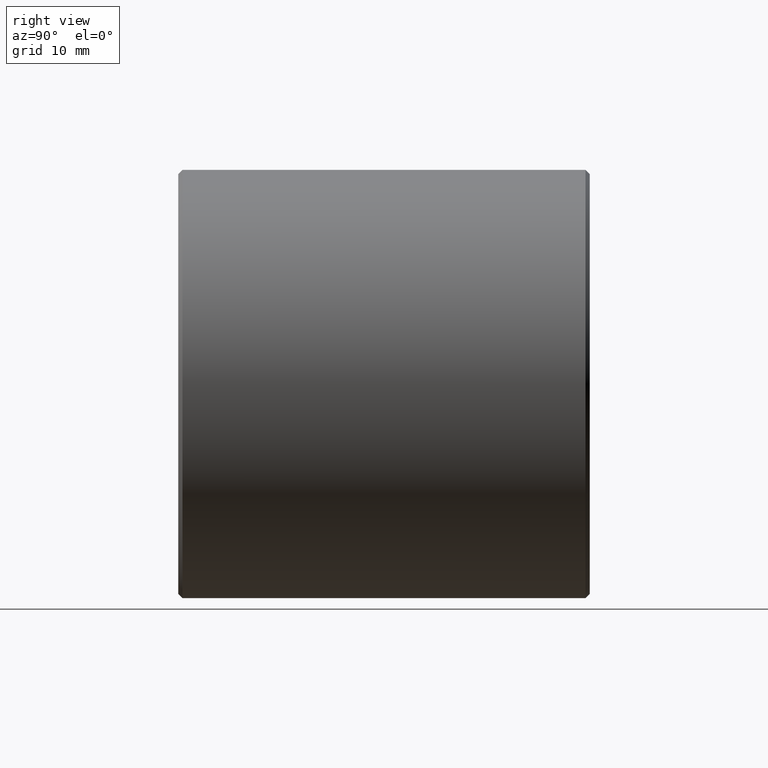
[diagram: clean part render]
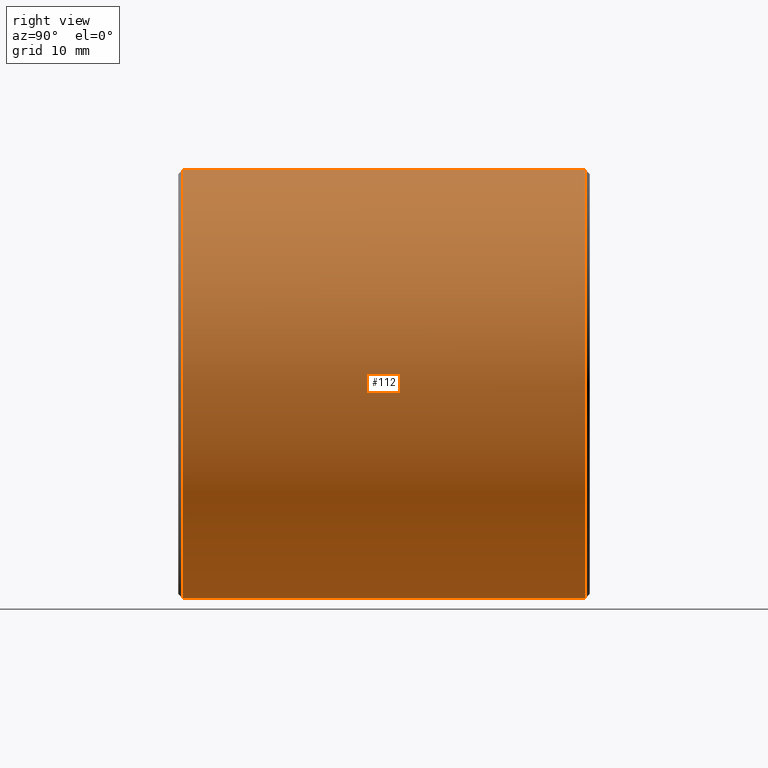
[diagram: same view with one face highlighted and labeled with its STEP entity id]
A machine part, right view. The second image highlights one B-rep face of the part: STEP entity #112.
In plain terms, the highlighted cylindrical surface (bore or boss wall) has radius 25.5 mm, axis along (-0, -1, -0).
Its self-contained STEP definition (entity closure, byte-faithful):
#16 = CYLINDRICAL_SURFACE ( 'NONE', #148, 25.50000000000000000 ) ;
#18 = DIRECTION ( 'NONE',  ( 0.000000000000000000, 0.000000000000000000, -1.000000000000000000 ) ) ;
#45 = DIRECTION ( 'NONE',  ( 0.000000000000000000, 0.000000000000000000, 1.000000000000000000 ) ) ;
#47 = AXIS2_PLACEMENT_3D ( 'NONE', #195, #341, #45 ) ;
#60 = CIRCLE ( 'NONE', #47, 25.50000000000000000 ) ;
#80 = CARTESIAN_POINT ( 'NONE',  ( 0.000000000000000000, 48.49999999999999289, 0.000000000000000000 ) ) ;
#84 = CARTESIAN_POINT ( 'NONE',  ( 0.000000000000000000, 48.49999999999999289, 25.50000000000000000 ) ) ;
#96 = AXIS2_PLACEMENT_3D ( 'NONE', #80, #105, #205 ) ;
#105 = DIRECTION ( 'NONE',  ( 0.000000000000000000, -1.000000000000000000, 0.000000000000000000 ) ) ;
#112 = ADVANCED_FACE ( 'NONE', ( #279, #228 ), #16, .T. ) ;
#113 = VERTEX_POINT ( 'NONE', #84 ) ;
#118 = EDGE_CURVE ( 'NONE', #255, #255, #60, .T. ) ;
#137 = CARTESIAN_POINT ( 'NONE',  ( 0.000000000000000000, 0.5000000000000004441, 25.50000000000000000 ) ) ;
#148 = AXIS2_PLACEMENT_3D ( 'NONE', #306, #231, #18 ) ;
#195 = CARTESIAN_POINT ( 'NONE',  ( 0.000000000000000000, 0.5000000000000004441, 0.000000000000000000 ) ) ;
#202 = EDGE_LOOP ( 'NONE', ( #305 ) ) ;
#205 = DIRECTION ( 'NONE',  ( 0.000000000000000000, 0.000000000000000000, 1.000000000000000000 ) ) ;
#215 = ORIENTED_EDGE ( 'NONE', *, *, #353, .T. ) ;
#228 = FACE_OUTER_BOUND ( 'NONE', #359, .T. ) ;
#231 = DIRECTION ( 'NONE',  ( -0.000000000000000000, -1.000000000000000000, -0.000000000000000000 ) ) ;
#255 = VERTEX_POINT ( 'NONE', #137 ) ;
#279 = FACE_OUTER_BOUND ( 'NONE', #202, .T. ) ;
#305 = ORIENTED_EDGE ( 'NONE', *, *, #118, .T. ) ;
#306 = CARTESIAN_POINT ( 'NONE',  ( 0.000000000000000000, 49.00000000000000000, 0.000000000000000000 ) ) ;
#341 = DIRECTION ( 'NONE',  ( -0.000000000000000000, 1.000000000000000000, -0.000000000000000000 ) ) ;
#352 = CIRCLE ( 'NONE', #96, 25.50000000000000000 ) ;
#353 = EDGE_CURVE ( 'NONE', #113, #113, #352, .T. ) ;
#359 = EDGE_LOOP ( 'NONE', ( #215 ) ) ;